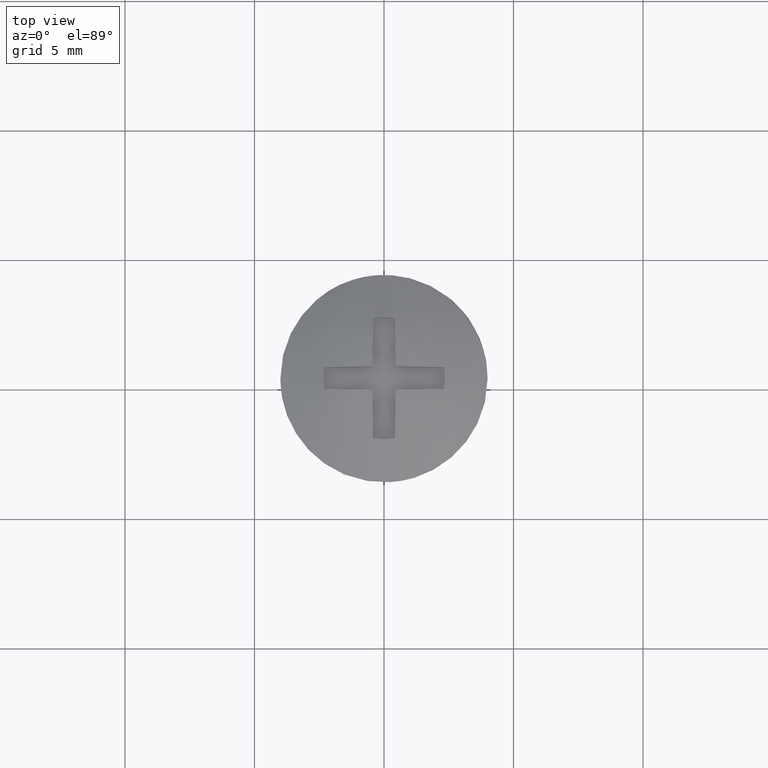
[diagram: clean part render]
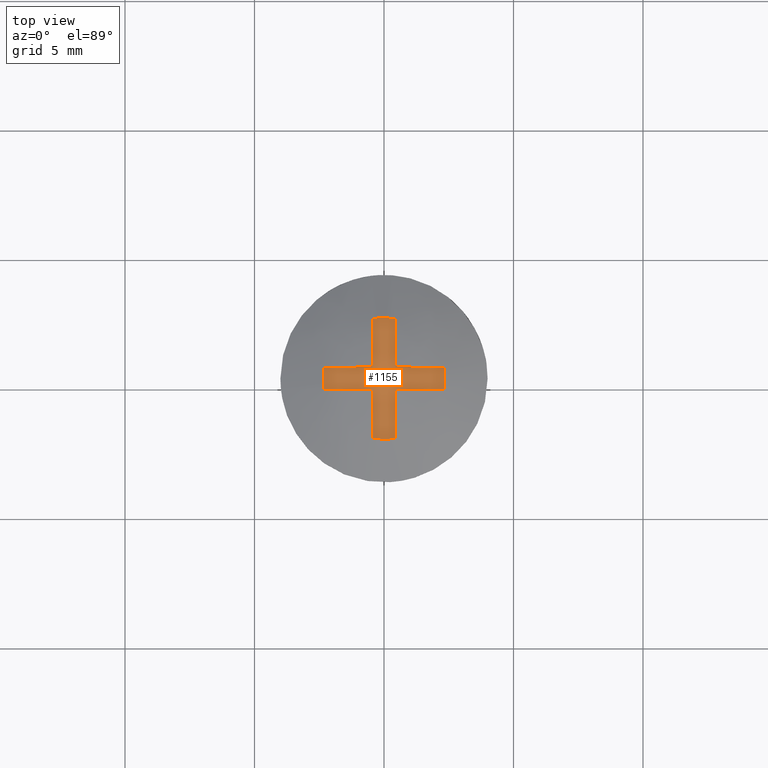
[diagram: same view with one face highlighted and labeled with its STEP entity id]
A machine part, top view. The second image highlights one B-rep face of the part: STEP entity #1155.
In plain terms, the highlighted face is a freeform B-spline surface patch.
Its self-contained STEP definition (entity closure, byte-faithful):
#1032=CARTESIAN_POINT('',(-2.584764885858311,2.584764885858311,0.0));
#1033=CARTESIAN_POINT('',(2.584764759794486,2.584764885858311,0.0));
#1034=CARTESIAN_POINT('',(-2.584764885858311,-2.584764759794486,0.0));
#1035=CARTESIAN_POINT('',(2.584764759794486,-2.584764759794486,0.0));
#1036=B_SPLINE_SURFACE_WITH_KNOTS('',1,1,((#1032,#1034),(#1033,#1035)),.UNSPECIFIED.,.F.,.F.,.U.,(2,2),(2,2),(0.0,5.169529645652797),(0.0,5.169529645652798),.UNSPECIFIED.);
#1037=CARTESIAN_POINT('',(-0.452394242445018,0.452593227179430,0.0));
#1038=VERTEX_POINT('',#1037);
#1039=CARTESIAN_POINT('',(-0.420014611924039,2.312160834753995,0.0));
#1040=VERTEX_POINT('',#1039);
#1041=CARTESIAN_POINT('',(-0.452394242445018,0.452593227179430,0.0));
#1042=CARTESIAN_POINT('',(-0.420014611924039,2.312160834753995,0.0));
#1043=QUASI_UNIFORM_CURVE('',1,(#1041,#1042),.UNSPECIFIED.,.F.,.U.);
#1044=EDGE_CURVE('',#1038,#1040,#1043,.T.);
#1045=ORIENTED_EDGE('',*,*,#1044,.F.);
#1046=CARTESIAN_POINT('',(-2.312163372429150,0.420000641900767,0.0));
#1047=VERTEX_POINT('',#1046);
#1048=CARTESIAN_POINT('',(-2.312163372429150,0.420000641900767,0.0));
#1049=CARTESIAN_POINT('',(-0.452394242445018,0.452593227179430,0.0));
#1050=QUASI_UNIFORM_CURVE('',1,(#1048,#1049),.UNSPECIFIED.,.F.,.U.);
#1051=EDGE_CURVE('',#1047,#1038,#1050,.T.);
#1052=ORIENTED_EDGE('',*,*,#1051,.F.);
#1053=CARTESIAN_POINT('',(-2.312163372429150,-0.420000641900767,0.0));
#1054=VERTEX_POINT('',#1053);
#1055=CARTESIAN_POINT('',(-2.312163372429151,0.420000641900768,0.0));
#1056=CARTESIAN_POINT('',(-2.388455792463351,-1.084202E-016,0.0));
#1057=CARTESIAN_POINT('',(-2.312163372429151,-0.420000641900767,0.0));
#1065=(BOUNDED_CURVE()B_SPLINE_CURVE(2,(#1055,#1056,#1057),.UNSPECIFIED.,.F.,.U.)CURVE()GEOMETRIC_REPRESENTATION_ITEM()QUASI_UNIFORM_CURVE()RATIONAL_B_SPLINE_CURVE((1.0,0.983899307416660,1.0))REPRESENTATION_ITEM(''));
#1066=EDGE_CURVE('',#1047,#1054,#1065,.T.);
#1067=ORIENTED_EDGE('',*,*,#1066,.T.);
#1068=CARTESIAN_POINT('',(-0.452408359943641,-0.452592979769450,0.0));
#1069=VERTEX_POINT('',#1068);
#1070=CARTESIAN_POINT('',(-0.452408359943641,-0.452592979769450,0.0));
#1071=CARTESIAN_POINT('',(-2.312163372429150,-0.420000641900767,0.0));
#1072=QUASI_UNIFORM_CURVE('',1,(#1070,#1071),.UNSPECIFIED.,.F.,.U.);
#1073=EDGE_CURVE('',#1069,#1054,#1072,.T.);
#1074=ORIENTED_EDGE('',*,*,#1073,.F.);
#1075=CARTESIAN_POINT('',(-0.419997141433096,-2.312164008280560,0.0));
#1076=VERTEX_POINT('',#1075);
#1077=CARTESIAN_POINT('',(-0.419997141433096,-2.312164008280560,0.0));
#1078=CARTESIAN_POINT('',(-0.452408359943641,-0.452592979769450,0.0));
#1079=QUASI_UNIFORM_CURVE('',1,(#1077,#1078),.UNSPECIFIED.,.F.,.U.);
#1080=EDGE_CURVE('',#1076,#1069,#1079,.T.);
#1081=ORIENTED_EDGE('',*,*,#1080,.F.);
#1082=CARTESIAN_POINT('',(0.419997141433088,-2.312164008280560,0.0));
#1083=VERTEX_POINT('',#1082);
#1084=CARTESIAN_POINT('',(-0.419997141433096,-2.312164008280560,0.0));
#1085=CARTESIAN_POINT('',(-2.927346E-015,-2.388455135631491,0.0));
#1086=CARTESIAN_POINT('',(0.419997141433089,-2.312164008280562,0.0));
#1094=(BOUNDED_CURVE()B_SPLINE_CURVE(2,(#1084,#1085,#1086),.UNSPECIFIED.,.F.,.U.)CURVE()GEOMETRIC_REPRESENTATION_ITEM()QUASI_UNIFORM_CURVE()RATIONAL_B_SPLINE_CURVE((1.0,0.983899577991728,1.0))REPRESENTATION_ITEM(''));
#1095=EDGE_CURVE('',#1076,#1083,#1094,.T.);
#1096=ORIENTED_EDGE('',*,*,#1095,.T.);
#1097=CARTESIAN_POINT('',(0.452439928843953,-0.450781736159718,0.0));
#1098=VERTEX_POINT('',#1097);
#1099=CARTESIAN_POINT('',(0.452439928843953,-0.450781736159718,0.0));
#1100=CARTESIAN_POINT('',(0.419997141433088,-2.312164008280560,0.0));
#1101=QUASI_UNIFORM_CURVE('',1,(#1099,#1100),.UNSPECIFIED.,.F.,.U.);
#1102=EDGE_CURVE('',#1098,#1083,#1101,.T.);
#1103=ORIENTED_EDGE('',*,*,#1102,.F.);
#1104=CARTESIAN_POINT('',(2.312163378926475,-0.420000606132073,0.0));
#1105=VERTEX_POINT('',#1104);
#1106=CARTESIAN_POINT('',(2.312163378926475,-0.420000606132073,0.0));
#1107=CARTESIAN_POINT('',(0.452439928843953,-0.450781736159718,0.0));
#1108=QUASI_UNIFORM_CURVE('',1,(#1106,#1107),.UNSPECIFIED.,.F.,.U.);
#1109=EDGE_CURVE('',#1105,#1098,#1108,.T.);
#1110=ORIENTED_EDGE('',*,*,#1109,.F.);
#1111=CARTESIAN_POINT('',(2.312163372429150,0.420000641900767,0.0));
#1112=VERTEX_POINT('',#1111);
#1113=CARTESIAN_POINT('',(2.312163378926474,-0.420000606132073,0.0));
#1114=CARTESIAN_POINT('',(2.388455789107495,0.000000018474462,0.0));
#1115=CARTESIAN_POINT('',(2.312163372429151,0.420000641900766,0.0));
#1123=(BOUNDED_CURVE()B_SPLINE_CURVE(2,(#1113,#1114,#1115),.UNSPECIFIED.,.F.,.U.)CURVE()GEOMETRIC_REPRESENTATION_ITEM()QUASI_UNIFORM_CURVE()RATIONAL_B_SPLINE_CURVE((1.0,0.983899308799070,1.0))REPRESENTATION_ITEM(''));
#1124=EDGE_CURVE('',#1105,#1112,#1123,.T.);
#1125=ORIENTED_EDGE('',*,*,#1124,.T.);
#1126=CARTESIAN_POINT('',(0.452425794675152,0.452592674224369,0.0));
#1127=VERTEX_POINT('',#1126);
#1128=CARTESIAN_POINT('',(0.452425794675152,0.452592674224369,0.0));
#1129=CARTESIAN_POINT('',(2.312163372429150,0.420000641900767,0.0));
#1130=QUASI_UNIFORM_CURVE('',1,(#1128,#1129),.UNSPECIFIED.,.F.,.U.);
#1131=EDGE_CURVE('',#1127,#1112,#1130,.T.);
#1132=ORIENTED_EDGE('',*,*,#1131,.F.);
#1133=CARTESIAN_POINT('',(0.420014626196996,2.312160832161250,0.0));
#1134=VERTEX_POINT('',#1133);
#1135=CARTESIAN_POINT('',(0.420014626196996,2.312160832161250,0.0));
#1136=CARTESIAN_POINT('',(0.452425794675152,0.452592674224369,0.0));
#1137=QUASI_UNIFORM_CURVE('',1,(#1135,#1136),.UNSPECIFIED.,.F.,.U.);
#1138=EDGE_CURVE('',#1134,#1127,#1137,.T.);
#1139=ORIENTED_EDGE('',*,*,#1138,.F.);
#1140=CARTESIAN_POINT('',(0.420014626196997,2.312160832161248,0.0));
#1141=CARTESIAN_POINT('',(7.371971E-009,2.388458415213968,0.0));
#1142=CARTESIAN_POINT('',(-0.420014611924040,2.312160834753997,0.0));
#1150=(BOUNDED_CURVE()B_SPLINE_CURVE(2,(#1140,#1141,#1142),.UNSPECIFIED.,.F.,.U.)CURVE()GEOMETRIC_REPRESENTATION_ITEM()QUASI_UNIFORM_CURVE()RATIONAL_B_SPLINE_CURVE((1.0,0.983898227003244,1.0))REPRESENTATION_ITEM(''));
#1151=EDGE_CURVE('',#1134,#1040,#1150,.T.);
#1152=ORIENTED_EDGE('',*,*,#1151,.T.);
#1153=EDGE_LOOP('',(#1045,#1052,#1067,#1074,#1081,#1096,#1103,#1110,#1125,#1132,#1139,#1152));
#1154=FACE_OUTER_BOUND('',#1153,.T.);
#1155=ADVANCED_FACE('',(#1154),#1036,.F.);